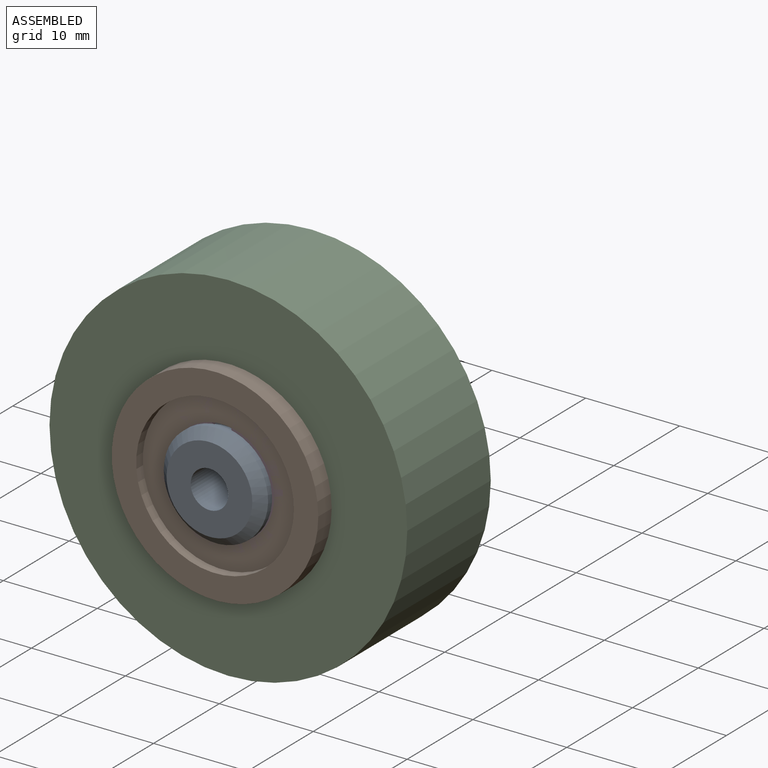
[diagram: assembled view]
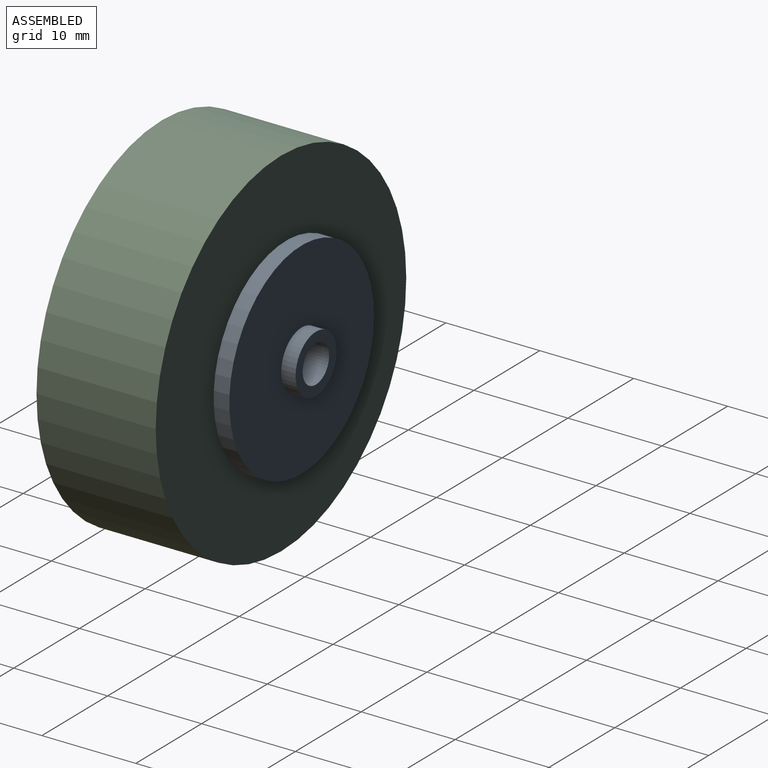
[diagram: assembled view, second angle]
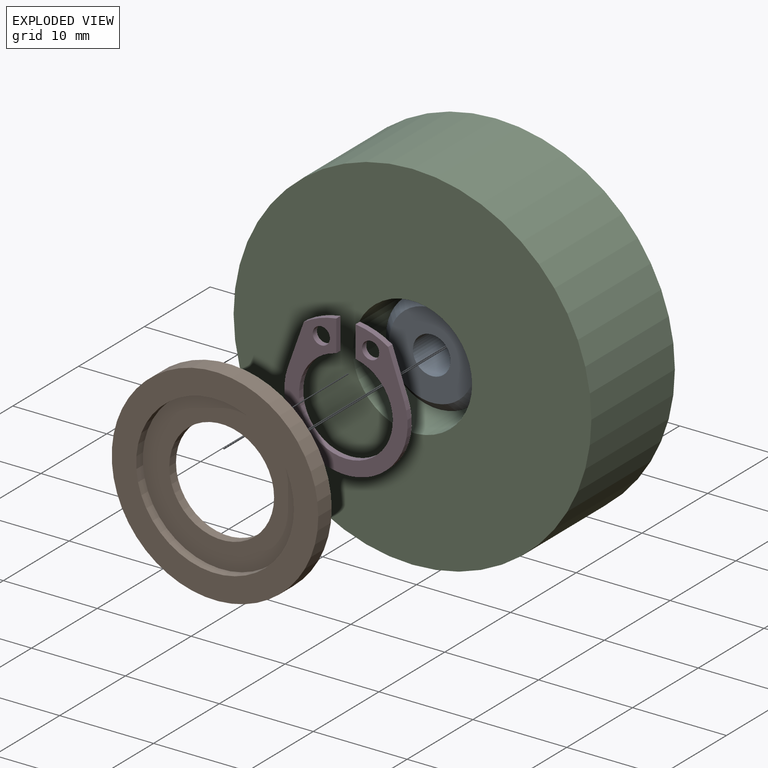
[diagram: exploded view]
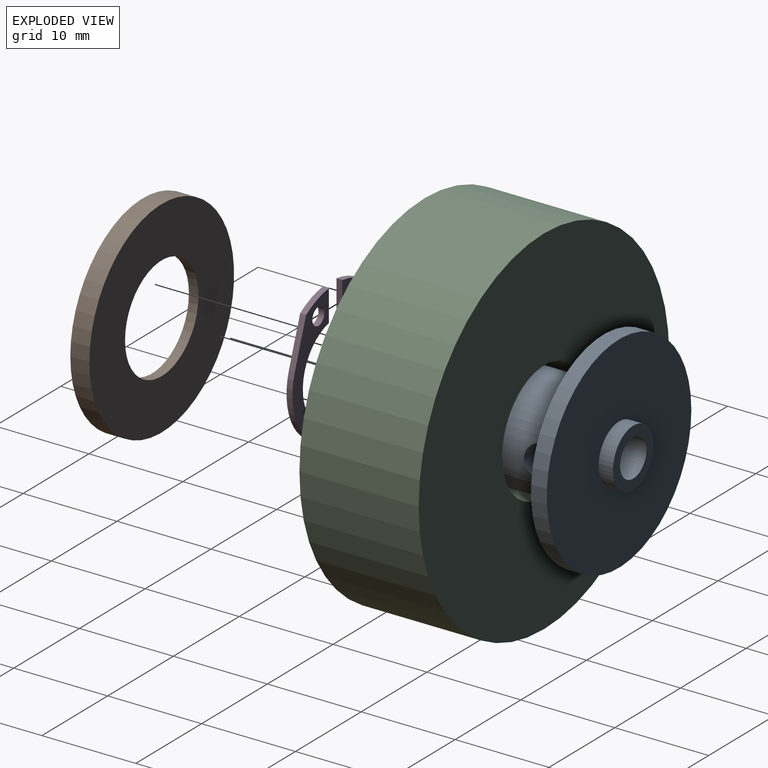
[diagram: exploded view, second angle]
ASSEMBLY  parts=4 mates=3
PART A: 15 faces, bbox 22x19.3x22 mm
  f0: cone r=4.57mm half-angle=45deg, axis (0,1,0), area 44.5mm2, adj f1,f2
  f1: cylinder r=5.56mm len=11.11mm, axis (0,1,0), area 21.3mm2, adj f0,f3
  f2: plane 9.13x9.13mm, normal (0,-1,0), area 52.9mm2, adj f0,f4
  f3: plane 11.11x11.11mm, normal (0,1,0), area 11mm2, adj f1,f5
  f4: cylinder r=2mm len=19.3mm, axis (0,1,0), area 219.7mm2, adj f2,f6,f7,f8
  f5: cylinder r=5.23mm len=10.46mm, axis (0,1,0), area 25.1mm2, adj f3,f9
  f6: plane 6.2x6.2mm, normal (0,1,0), area 17.6mm2, adj f4,f10
  f7: cylinder r=1.78mm len=4.64mm, axis (1,0,0), area 43.6mm2, adj f4,f11
  f8: cylinder r=1.78mm len=4.64mm, axis (1,0,0), area 43.6mm2, adj f4,f11
  f9: plane 11.11x11.11mm, normal (0,-1,0), area 11mm2, adj f5,f11
  f10: cylinder r=3.1mm len=6.2mm, axis (0,1,0), area 29.7mm2, adj f6,f12
  f11: cylinder r=5.56mm len=13.74mm, axis (0,1,0), area 459.6mm2, adj f7,f8,f9,f13
  f12: plane 22x22mm, normal (0,1,0), area 349.9mm2, adj f10,f14
  f13: plane 22x22mm, normal (0,-1,0), area 283mm2, adj f11,f14
  f14: cylinder r=11mm len=22mm, axis (0,1,0), area 115.8mm2, adj f12,f13
PART B: 6 faces, bbox 22x2x22 mm
  f0: plane 22x22mm, normal (0,1,0), area 282.2mm2, adj f1,f2
  f1: cylinder r=5.58mm len=11.16mm, axis (0,-1,0), area 35.6mm2, adj f0,f3
  f2: cylinder r=11mm len=22mm, axis (0,-1,0), area 140.4mm2, adj f0,f4
  f3: plane 16.8x16.8mm, normal (0,-1,0), area 123.9mm2, adj f1,f5
  f4: plane 22x22mm, normal (0,-1,0), area 158.3mm2, adj f2,f5
  f5: cylinder r=8.4mm len=16.8mm, axis (0,-1,0), area 53.6mm2, adj f3,f4
PART C: 4 faces, bbox 38.1x12.7x38.1 mm
  f0: cylinder r=6.35mm len=12.7mm, axis (0,1,0), area 506.7mm2, adj f2,f3
  f1: cylinder r=19.05mm len=38.1mm, axis (0,1,0), area 1520.1mm2, adj f2,f3
  f2: plane 38.1x38.1mm, normal (0,-1,0), area 1013.4mm2, adj f0,f1
  f3: plane 38.1x38.1mm, normal (0,1,0), area 1013.4mm2, adj f0,f1
PART D: 12 faces, bbox 13.1x0.6x14.8 mm
  f0: plane 3.35x0.64mm, normal (1,0,0), area 2.1mm2, adj f1,f7,f9,f10
  f1: cylinder r=8.3mm len=3.46mm, axis (0,-1,0), area 2.4mm2, adj f0,f2,f9,f10
  f2: plane 4.79x1.7mm, normal (-0.94,0,0.33), area 3.2mm2, adj f1,f3,f9,f10
  f3: cylinder r=6.57mm len=13.13mm, axis (0,-1,0), area 15.9mm2, adj f2,f4,f9,f10
  f4: plane 4.79x1.7mm, normal (0.94,0,0.33), area 3.2mm2, adj f3,f5,f9,f10
  f5: cylinder r=8.3mm len=3.46mm, axis (0,-1,0), area 2.4mm2, adj f4,f6,f9,f10
  f6: plane 3.35x0.64mm, normal (-1,0,0), area 2.1mm2, adj f5,f7,f9,f10
  f7: cylinder r=4.99mm len=9.98mm, axis (0,-1,0), area 18.6mm2, adj f0,f6,f9,f10
  f8: cylinder r=0.91mm len=1.83mm, axis (0,-1,0), area 3.6mm2, adj f9,f10
  f9: plane 14.8x13.13mm, normal (0,1,0), area 64.8mm2, adj f0,f1,f2,f3,f4,f5,f6,f7
  f10: plane 14.8x13.13mm, normal (0,-1,0), area 64.8mm2, adj f0,f1,f2,f3,f4,f5,f6,f7
  f11: cylinder r=0.91mm len=1.83mm, axis (0,-1,0), area 3.6mm2, adj f9,f10
PLACE A t=(-11.59,20.07,5.43)mm
PLACE B t=(-11.59,19.32,5.43)mm
PLACE C t=(30.58,16.35,34.78)mm
PLACE D t=(-11.59,20.28,5.43)mm
MATE fastened C.f0 <-> A.f0  axis (0,1,0) through (-11.59,10,5.43)mm
MATE fastened B.f1 <-> C.f0  axis (0,1,0) through (-11.59,3.65,5.43)mm
MATE fastened D.f1 <-> B.f1  axis (0,-1,0) through (-11.59,2.63,5.43)mm
